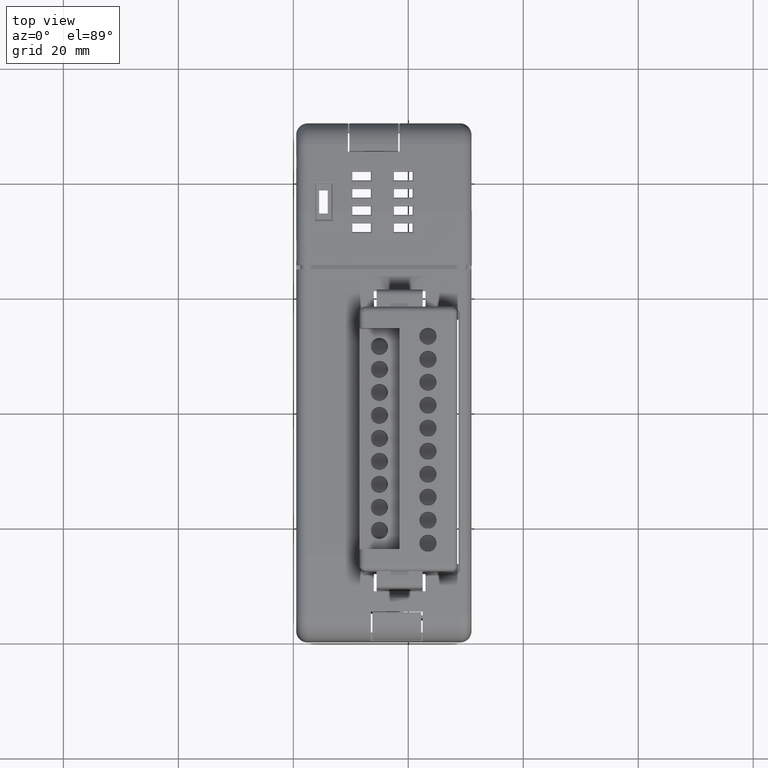
[diagram: clean part render]
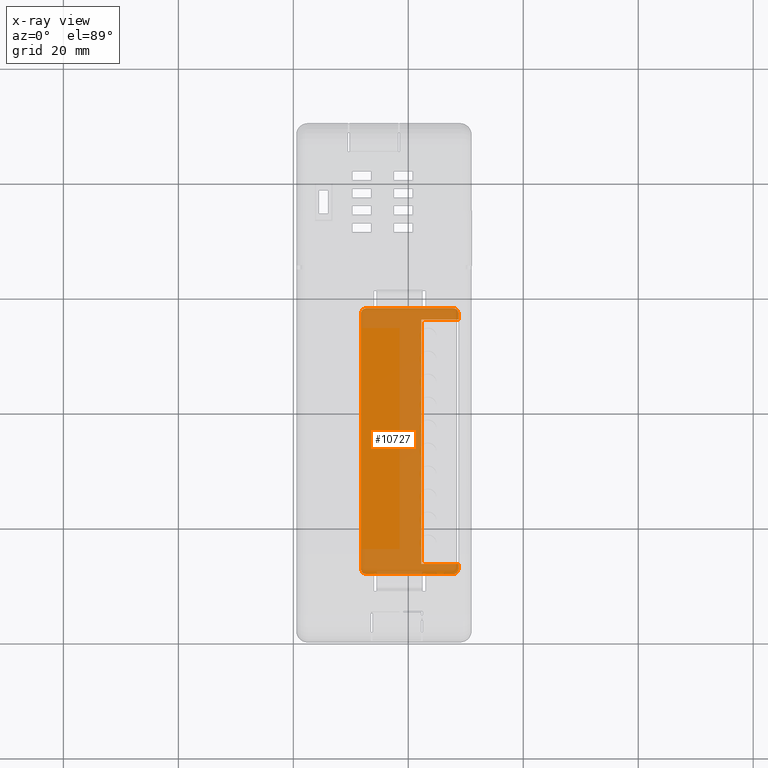
[diagram: x-ray — body ghosted, one internal face saturated and labeled with its STEP entity id]
A machine part, top view, then the same camera in x-ray: the body is ghosted and one INTERNAL B-rep face — a face not visible from any outside direction — is saturated and labeled: STEP entity #10727.
In plain terms, the highlighted planar face has unit normal (0, 0, 1).
Its self-contained STEP definition (entity closure, byte-faithful):
#6064 = VERTEX_POINT ( 'NONE', #13788 ) ;
#6070 = EDGE_CURVE ( 'NONE', #6071, #6072, #13817, .T. ) ;
#6071 = VERTEX_POINT ( 'NONE', #13871 ) ;
#6072 = VERTEX_POINT ( 'NONE', #13870 ) ;
#6086 = EDGE_CURVE ( 'NONE', #6087, #6088, #13896, .T. ) ;
#6087 = VERTEX_POINT ( 'NONE', #13892 ) ;
#6088 = VERTEX_POINT ( 'NONE', #13891 ) ;
#6106 = VERTEX_POINT ( 'NONE', #13928 ) ;
#6123 = EDGE_CURVE ( 'NONE', #6064, #6138, #13944, .T. ) ;
#6133 = EDGE_CURVE ( 'NONE', #6134, #6106, #14015, .T. ) ;
#6134 = VERTEX_POINT ( 'NONE', #14011 ) ;
#6137 = EDGE_CURVE ( 'NONE', #6138, #6071, #14046, .T. ) ;
#6138 = VERTEX_POINT ( 'NONE', #14042 ) ;
#9787 = VERTEX_POINT ( 'NONE', #24559 ) ;
#9789 = EDGE_CURVE ( 'NONE', #6072, #9787, #24558, .T. ) ;
#9805 = VERTEX_POINT ( 'NONE', #24636 ) ;
#9855 = EDGE_CURVE ( 'NONE', #9805, #6064, #24751, .T. ) ;
#10722 = ORIENTED_EDGE ( 'NONE', *, *, #10780, .T. ) ;
#10724 = VERTEX_POINT ( 'NONE', #27371 ) ;
#10726 = EDGE_CURVE ( 'NONE', #6088, #10724, #27422, .T. ) ;
#10727 = ADVANCED_FACE ( 'NONE', ( #27418 ), #27403, .T. ) ;
#10728 = EDGE_LOOP ( 'NONE', ( #10729, #10730, #10731, #10733, #10734, #10792, #10793, #10796, #10799, #10802, #10804, #10722, #10782, #10784, #10785, #10786 ) ) ;
#10729 = ORIENTED_EDGE ( 'NONE', *, *, #6070, .T. ) ;
#10730 = ORIENTED_EDGE ( 'NONE', *, *, #9789, .T. ) ;
#10731 = ORIENTED_EDGE ( 'NONE', *, *, #10732, .T. ) ;
#10732 = EDGE_CURVE ( 'NONE', #9787, #10760, #27397, .T. ) ;
#10733 = ORIENTED_EDGE ( 'NONE', *, *, #10740, .T. ) ;
#10734 = ORIENTED_EDGE ( 'NONE', *, *, #6086, .T. ) ;
#10740 = EDGE_CURVE ( 'NONE', #10760, #6087, #27443, .T. ) ;
#10760 = VERTEX_POINT ( 'NONE', #27482 ) ;
#10780 = EDGE_CURVE ( 'NONE', #6106, #10781, #27587, .T. ) ;
#10781 = VERTEX_POINT ( 'NONE', #27583 ) ;
#10782 = ORIENTED_EDGE ( 'NONE', *, *, #10783, .T. ) ;
#10783 = EDGE_CURVE ( 'NONE', #10781, #9805, #27581, .T. ) ;
#10784 = ORIENTED_EDGE ( 'NONE', *, *, #9855, .T. ) ;
#10785 = ORIENTED_EDGE ( 'NONE', *, *, #6123, .T. ) ;
#10786 = ORIENTED_EDGE ( 'NONE', *, *, #6137, .T. ) ;
#10792 = ORIENTED_EDGE ( 'NONE', *, *, #10726, .T. ) ;
#10793 = ORIENTED_EDGE ( 'NONE', *, *, #10794, .T. ) ;
#10794 = EDGE_CURVE ( 'NONE', #10724, #10795, #27616, .T. ) ;
#10795 = VERTEX_POINT ( 'NONE', #27611 ) ;
#10796 = ORIENTED_EDGE ( 'NONE', *, *, #10797, .T. ) ;
#10797 = EDGE_CURVE ( 'NONE', #10795, #10798, #27610, .T. ) ;
#10798 = VERTEX_POINT ( 'NONE', #27606 ) ;
#10799 = ORIENTED_EDGE ( 'NONE', *, *, #10800, .T. ) ;
#10800 = EDGE_CURVE ( 'NONE', #10798, #10801, #27605, .T. ) ;
#10801 = VERTEX_POINT ( 'NONE', #27600 ) ;
#10802 = ORIENTED_EDGE ( 'NONE', *, *, #10803, .T. ) ;
#10803 = EDGE_CURVE ( 'NONE', #10801, #6134, #27598, .T. ) ;
#10804 = ORIENTED_EDGE ( 'NONE', *, *, #6133, .T. ) ;
#13788 = CARTESIAN_POINT ( 'NONE',  ( 28.75000000000000400, -27.27706855259259900, 4.113725541639196200 ) ) ;
#13815 = VECTOR ( 'NONE', #13872, 1000.000000000000000 ) ;
#13816 = CARTESIAN_POINT ( 'NONE',  ( 22.25000000000000400, 15.22293144740740400, 4.113725541639197100 ) ) ;
#13817 = LINE ( 'NONE', #13816, #13815 ) ;
#13870 = CARTESIAN_POINT ( 'NONE',  ( 28.75000000000000400, 15.22293144740740400, 4.113725541639196200 ) ) ;
#13871 = CARTESIAN_POINT ( 'NONE',  ( 22.25000000000000400, 15.22293144740740400, 4.113725541639197100 ) ) ;
#13872 = DIRECTION ( 'NONE',  ( 1.000000000000000000, 0.0000000000000000000, -0.0000000000000000000 ) ) ;
#13891 = CARTESIAN_POINT ( 'NONE',  ( 14.00000000000000000, 17.22293144740740100, 4.113725541639196200 ) ) ;
#13892 = CARTESIAN_POINT ( 'NONE',  ( 23.00000000000000000, 17.22293144740740100, 4.113725541639196200 ) ) ;
#13893 = DIRECTION ( 'NONE',  ( -1.000000000000000000, 0.0000000000000000000, 0.0000000000000000000 ) ) ;
#13894 = VECTOR ( 'NONE', #13893, 1000.000000000000000 ) ;
#13895 = CARTESIAN_POINT ( 'NONE',  ( 27.74999999999999600, 17.22293144740740100, 4.113725541639196200 ) ) ;
#13896 = LINE ( 'NONE', #13895, #13894 ) ;
#13928 = CARTESIAN_POINT ( 'NONE',  ( 23.00000000000000700, -29.02706855259259900, 4.113725541639197100 ) ) ;
#13941 = DIRECTION ( 'NONE',  ( -1.000000000000000000, 5.337610695313253400E-016, 0.0000000000000000000 ) ) ;
#13942 = VECTOR ( 'NONE', #13941, 1000.000000000000000 ) ;
#13943 = CARTESIAN_POINT ( 'NONE',  ( 22.25000000000000700, -27.27706855259259600, 4.113725541639197100 ) ) ;
#13944 = LINE ( 'NONE', #13943, #13942 ) ;
#14011 = CARTESIAN_POINT ( 'NONE',  ( 14.00000000000000500, -29.02706855259260300, 4.113725541639196200 ) ) ;
#14012 = DIRECTION ( 'NONE',  ( 1.000000000000000000, 2.312964634635744900E-016, -0.0000000000000000000 ) ) ;
#14013 = VECTOR ( 'NONE', #14012, 1000.000000000000000 ) ;
#14014 = CARTESIAN_POINT ( 'NONE',  ( 27.74999999999999600, -29.02706855259259900, 4.113725541639196200 ) ) ;
#14015 = LINE ( 'NONE', #14014, #14013 ) ;
#14042 = CARTESIAN_POINT ( 'NONE',  ( 22.25000000000000700, -27.27706855259259600, 4.113725541639197100 ) ) ;
#14043 = DIRECTION ( 'NONE',  ( -8.163404592832034000E-017, 1.000000000000000000, 0.0000000000000000000 ) ) ;
#14044 = VECTOR ( 'NONE', #14043, 1000.000000000000000 ) ;
#14045 = CARTESIAN_POINT ( 'NONE',  ( 22.25000000000000400, 15.22293144740740400, 4.113725541639197100 ) ) ;
#14046 = LINE ( 'NONE', #14045, #14044 ) ;
#24555 = DIRECTION ( 'NONE',  ( 0.0000000000000000000, 1.000000000000000000, 0.0000000000000000000 ) ) ;
#24556 = VECTOR ( 'NONE', #24555, 1000.000000000000000 ) ;
#24557 = CARTESIAN_POINT ( 'NONE',  ( 28.75000000000000400, -28.02706855259259200, 4.113725541639196200 ) ) ;
#24558 = LINE ( 'NONE', #24557, #24556 ) ;
#24559 = CARTESIAN_POINT ( 'NONE',  ( 28.75000000000000400, 16.22293144740739000, 4.113725541639196200 ) ) ;
#24636 = CARTESIAN_POINT ( 'NONE',  ( 28.75000000000000400, -28.02706855259259200, 4.113725541639196200 ) ) ;
#24748 = DIRECTION ( 'NONE',  ( 0.0000000000000000000, 1.000000000000000000, 0.0000000000000000000 ) ) ;
#24749 = VECTOR ( 'NONE', #24748, 1000.000000000000000 ) ;
#24750 = CARTESIAN_POINT ( 'NONE',  ( 28.75000000000000400, -28.02706855259259200, 4.113725541639196200 ) ) ;
#24751 = LINE ( 'NONE', #24750, #24749 ) ;
#27371 = CARTESIAN_POINT ( 'NONE',  ( 12.75000000000001100, 17.22293144740740100, 4.113725541639196200 ) ) ;
#27397 = CIRCLE ( 'NONE', #27402, 1.000000000000000900 ) ;
#27398 = DIRECTION ( 'NONE',  ( 1.000000000000000000, 0.0000000000000000000, -0.0000000000000000000 ) ) ;
#27399 = DIRECTION ( 'NONE',  ( 0.0000000000000000000, 0.0000000000000000000, 1.000000000000000000 ) ) ;
#27400 = CARTESIAN_POINT ( 'NONE',  ( 12.75000000000000200, 16.22293144740739700, 4.113725541639196200 ) ) ;
#27401 = AXIS2_PLACEMENT_3D ( 'NONE', #27400, #27399, #27398 ) ;
#27402 = AXIS2_PLACEMENT_3D ( 'NONE', #27451, #27450, #27449 ) ;
#27403 = PLANE ( 'NONE',  #27401 ) ;
#27418 = FACE_OUTER_BOUND ( 'NONE', #10728, .T. ) ;
#27419 = DIRECTION ( 'NONE',  ( -1.000000000000000000, 0.0000000000000000000, 0.0000000000000000000 ) ) ;
#27420 = VECTOR ( 'NONE', #27419, 1000.000000000000000 ) ;
#27421 = CARTESIAN_POINT ( 'NONE',  ( 27.74999999999999600, 17.22293144740740100, 4.113725541639196200 ) ) ;
#27422 = LINE ( 'NONE', #27421, #27420 ) ;
#27440 = DIRECTION ( 'NONE',  ( -1.000000000000000000, 0.0000000000000000000, 0.0000000000000000000 ) ) ;
#27441 = VECTOR ( 'NONE', #27440, 1000.000000000000000 ) ;
#27442 = CARTESIAN_POINT ( 'NONE',  ( 27.74999999999999600, 17.22293144740740100, 4.113725541639196200 ) ) ;
#27443 = LINE ( 'NONE', #27442, #27441 ) ;
#27449 = DIRECTION ( 'NONE',  ( 1.000000000000000000, 0.0000000000000000000, 0.0000000000000000000 ) ) ;
#27450 = DIRECTION ( 'NONE',  ( 0.0000000000000000000, 0.0000000000000000000, 1.000000000000000000 ) ) ;
#27451 = CARTESIAN_POINT ( 'NONE',  ( 27.75000000000000400, 16.22293144740739700, 4.113725541639196200 ) ) ;
#27482 = CARTESIAN_POINT ( 'NONE',  ( 27.74999999999999600, 17.22293144740740100, 4.113725541639196200 ) ) ;
#27577 = DIRECTION ( 'NONE',  ( 1.000000000000000000, 0.0000000000000000000, 0.0000000000000000000 ) ) ;
#27578 = DIRECTION ( 'NONE',  ( 0.0000000000000000000, 0.0000000000000000000, 1.000000000000000000 ) ) ;
#27579 = CARTESIAN_POINT ( 'NONE',  ( 27.75000000000000400, -28.02706855259259900, 4.113725541639196200 ) ) ;
#27580 = AXIS2_PLACEMENT_3D ( 'NONE', #27579, #27578, #27577 ) ;
#27581 = CIRCLE ( 'NONE', #27580, 1.000000000000000900 ) ;
#27583 = CARTESIAN_POINT ( 'NONE',  ( 27.74999999999999600, -29.02706855259259900, 4.113725541639196200 ) ) ;
#27584 = DIRECTION ( 'NONE',  ( 1.000000000000000000, 2.312964634635744900E-016, -0.0000000000000000000 ) ) ;
#27585 = VECTOR ( 'NONE', #27584, 1000.000000000000000 ) ;
#27586 = CARTESIAN_POINT ( 'NONE',  ( 27.74999999999999600, -29.02706855259259900, 4.113725541639196200 ) ) ;
#27587 = LINE ( 'NONE', #27586, #27585 ) ;
#27595 = DIRECTION ( 'NONE',  ( 1.000000000000000000, 2.312964634635744900E-016, -0.0000000000000000000 ) ) ;
#27596 = VECTOR ( 'NONE', #27595, 1000.000000000000000 ) ;
#27597 = CARTESIAN_POINT ( 'NONE',  ( 27.74999999999999600, -29.02706855259259900, 4.113725541639196200 ) ) ;
#27598 = LINE ( 'NONE', #27597, #27596 ) ;
#27600 = CARTESIAN_POINT ( 'NONE',  ( 12.75000000000001100, -29.02706855259260300, 4.113725541639196200 ) ) ;
#27601 = DIRECTION ( 'NONE',  ( -1.000000000000000000, 0.0000000000000000000, 0.0000000000000000000 ) ) ;
#27602 = DIRECTION ( 'NONE',  ( 0.0000000000000000000, 0.0000000000000000000, 1.000000000000000000 ) ) ;
#27603 = CARTESIAN_POINT ( 'NONE',  ( 12.75000000000000400, -28.02706855259260300, 4.113725541639196200 ) ) ;
#27604 = AXIS2_PLACEMENT_3D ( 'NONE', #27603, #27602, #27601 ) ;
#27605 = CIRCLE ( 'NONE', #27604, 1.000000000000000900 ) ;
#27606 = CARTESIAN_POINT ( 'NONE',  ( 11.75000000000000400, -28.02706855259259600, 4.113725541639196200 ) ) ;
#27607 = DIRECTION ( 'NONE',  ( -0.0000000000000000000, -1.000000000000000000, -0.0000000000000000000 ) ) ;
#27608 = VECTOR ( 'NONE', #27607, 1000.000000000000000 ) ;
#27609 = CARTESIAN_POINT ( 'NONE',  ( 11.75000000000000400, -28.02706855259259600, 4.113725541639196200 ) ) ;
#27610 = LINE ( 'NONE', #27609, #27608 ) ;
#27611 = CARTESIAN_POINT ( 'NONE',  ( 11.75000000000000400, 16.22293144740739000, 4.113725541639196200 ) ) ;
#27612 = DIRECTION ( 'NONE',  ( 1.000000000000000000, 0.0000000000000000000, 0.0000000000000000000 ) ) ;
#27613 = DIRECTION ( 'NONE',  ( 0.0000000000000000000, 0.0000000000000000000, 1.000000000000000000 ) ) ;
#27614 = CARTESIAN_POINT ( 'NONE',  ( 12.75000000000000200, 16.22293144740739700, 4.113725541639196200 ) ) ;
#27615 = AXIS2_PLACEMENT_3D ( 'NONE', #27614, #27613, #27612 ) ;
#27616 = CIRCLE ( 'NONE', #27615, 0.9999999999999991100 ) ;